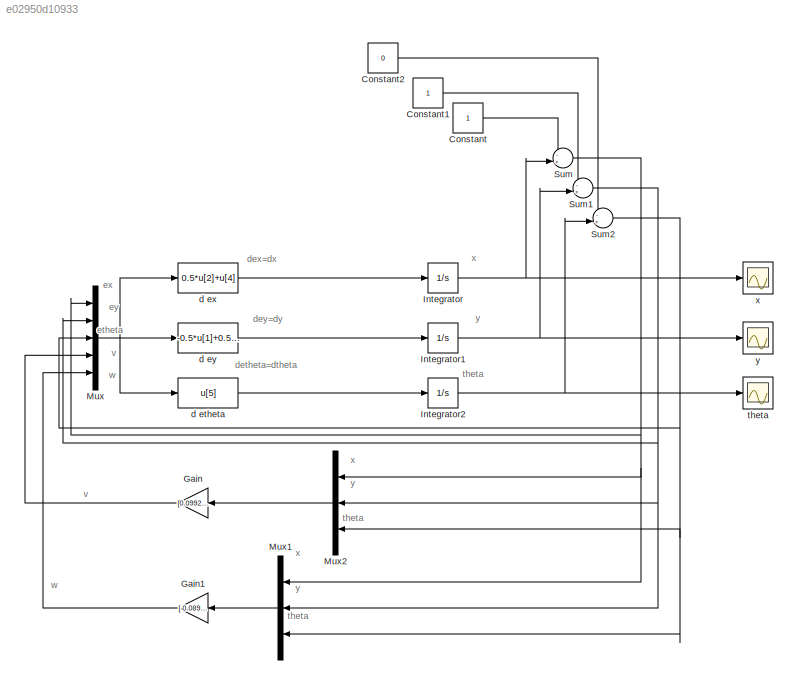
MODEL slx_e02950d10933
KIND model
CONFIG AbsTol = auto
CONFIG FixedStep = 0.02
CONFIG MaxStep = auto
CONFIG MinStep = auto
CONFIG RelTol = 1e-3
CONFIG SampleTimeConstraint = Unconstrained
CONFIG Solver = ode3
CONFIG SolverMode = Auto
CONFIG SolverName = ode3
CONFIG StartTime = 0.0
CONFIG StopTime = 22
BLOCK [Constant] Constant
BLOCK [Constant] Constant1
BLOCK [Constant] Constant2
  Value = 0
BLOCK [Gain] Gain
  Gain = [0.0992   -0.0079   -0.0899]
  Multiplication = Matrix(K*u)
  OutDataTypeStr = Inherit: Inherit via internal rule
  ParamDataTypeStr = Inherit: Inherit via internal rule
  SaturateOnIntegerOverflow = off
BLOCK [Gain] Gain1
  Gain = [-0.0899    0.0449    0.1944]
  Multiplication = Matrix(K*u)
  OutDataTypeStr = Inherit: Inherit via internal rule
  ParamDataTypeStr = Inherit: Inherit via internal rule
  SaturateOnIntegerOverflow = off
BLOCK [Integrator] Integrator
  Ports = [1, 1]
BLOCK [Integrator] Integrator1
  Ports = [1, 1]
BLOCK [Integrator] Integrator2
  Ports = [1, 1]
BLOCK [Mux] Mux
  DisplayOption = bar
  Inputs = 5
  Ports = [5, 1]
BLOCK [Mux] Mux1
  DisplayOption = bar
  Inputs = 3
  Ports = [3, 1]
BLOCK [Mux] Mux2
  DisplayOption = bar
  Inputs = 3
  Ports = [3, 1]
BLOCK [Sum] Sum
  IconShape = round
  InputSameDT = off
  Inputs = -+|
  OutDataTypeStr = Inherit: Inherit via internal rule
  Ports = [2, 1]
  SaturateOnIntegerOverflow = off
BLOCK [Sum] Sum1
  IconShape = round
  InputSameDT = off
  Inputs = -+|
  OutDataTypeStr = Inherit: Inherit via internal rule
  Ports = [2, 1]
  SaturateOnIntegerOverflow = off
BLOCK [Sum] Sum2
  IconShape = round
  InputSameDT = off
  Inputs = -+|
  OutDataTypeStr = Inherit: Inherit via internal rule
  Ports = [2, 1]
  SaturateOnIntegerOverflow = off
BLOCK [Fcn] d etheta
  Expr = u[5]
BLOCK [Fcn] d ex
  Expr = 0.5*u[2]+u[4]
BLOCK [Fcn] d ey
  Expr = -0.5*u[1]+0.5*u[3]
BLOCK [Scope] theta
  DataFormat = StructureWithTime
  Floating = off
  NumInputPorts = 1
  Ports = [1]
  SampleTime = 0
  SaveName = ScopeData1
BLOCK [Scope] x
  DataFormat = StructureWithTime
  Floating = off
  NumInputPorts = 1
  Ports = [1]
  SampleTime = 0
  SaveName = ScopeData3
  YMax = 0.9
  YMin = 0.72
  ZoomMode = yonly
BLOCK [Scope] y
  DataFormat = StructureWithTime
  Floating = off
  NumInputPorts = 1
  Ports = [1]
  SampleTime = 0
  YMax = 0.9
  YMin = 0.72
ANNOTATION (root): x
ANNOTATION (root): detheta=dtheta
ANNOTATION (root): dex=dx
ANNOTATION (root): dey=dy
ANNOTATION (root): etheta
ANNOTATION (root): ex
ANNOTATION (root): ey
ANNOTATION (root): theta
ANNOTATION (root): v
ANNOTATION (root): w
ANNOTATION (root): y
LINE Constant1:1 -> Sum1:1
LINE Constant2:1 -> Sum2:1
LINE Constant:1 -> Sum:1
LINE Gain1:1 -> Mux:5
LINE Gain:1 -> Mux:4
NET Integrator1:1 -> Sum1:2, y:1
NET Integrator2:1 -> Sum2:2, theta:1
NET Integrator:1 -> Sum:2, x:1
LINE Mux1:1 -> Gain1:1
LINE Mux2:1 -> Gain:1
NET Mux:1 -> d etheta:1, d ex:1, d ey:1
NET Sum1:1 -> Mux1:2, Mux2:2, Mux:2
NET Sum2:1 -> Mux1:3, Mux2:3, Mux:3
NET Sum:1 -> Mux1:1, Mux2:1, Mux:1
LINE d etheta:1 -> Integrator2:1
LINE d ex:1 -> Integrator:1
LINE d ey:1 -> Integrator1:1
note: NET lines group one-source signal fan-out (src -> all destinations, sorted); 1:1 wires keep LINE
